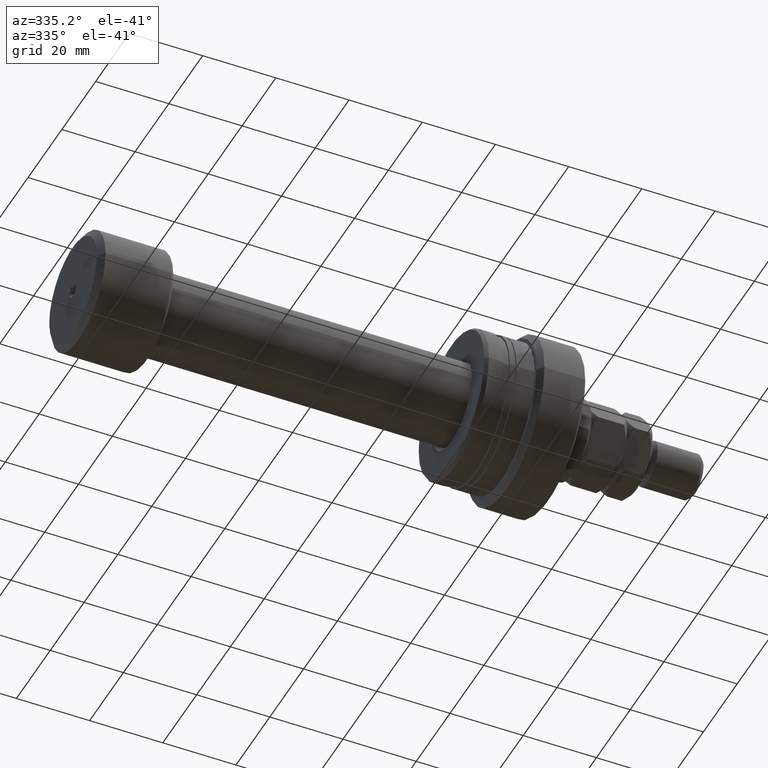
[diagram: clean part render]
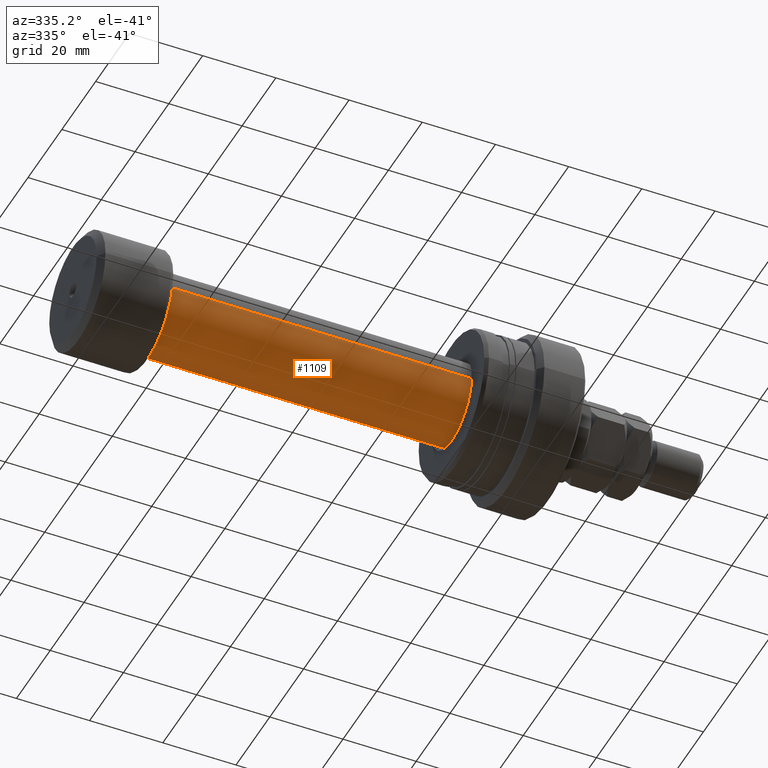
[diagram: same view with one face highlighted and labeled with its STEP entity id]
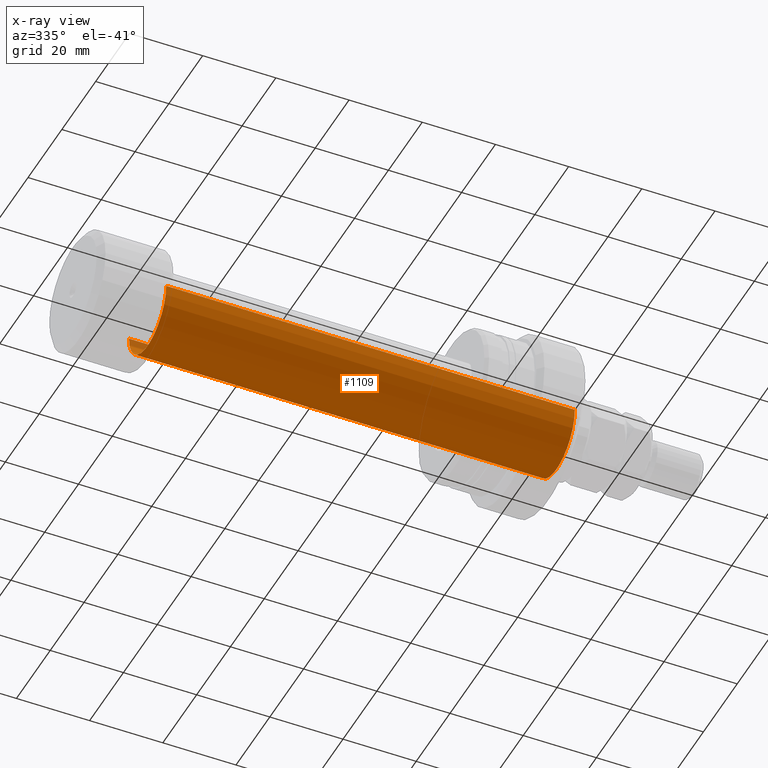
[diagram: x-ray of the same camera — body ghosted, the highlighted face saturated]
A machine part, auxiliary view. The second image highlights one B-rep face of the part: STEP entity #1109.
The next image is the same camera in x-ray: the body ghosted, the highlighted face saturated — about 0% of this face is hidden behind the body in this view.
In plain terms, the highlighted cylindrical surface (partial cylindrical patch) has radius 11 mm, axis along (-1, -0, -0).
Its self-contained STEP definition (entity closure, byte-faithful):
#91 = EDGE_CURVE ( 'NONE', #2416, #3063, #1292, .T. ) ;
#151 = EDGE_CURVE ( 'NONE', #3641, #2416, #3480, .T. ) ;
#375 = DIRECTION ( 'NONE',  ( -1.000000000000000000, -1.069542322069065801E-17, -0.000000000000000000 ) ) ;
#448 = DIRECTION ( 'NONE',  ( -1.000000000000000000, -1.069542322069065801E-17, -0.000000000000000000 ) ) ;
#586 = LINE ( 'NONE', #3426, #1886 ) ;
#730 = CARTESIAN_POINT ( 'NONE',  ( 0.000000000000000000, 0.000000000000000000, 0.000000000000000000 ) ) ;
#883 = EDGE_CURVE ( 'NONE', #3102, #3063, #586, .T. ) ;
#979 = EDGE_LOOP ( 'NONE', ( #2752, #1625, #1764, #2362 ) ) ;
#1109 = ADVANCED_FACE ( 'NONE', ( #3514 ), #3170, .T. ) ;
#1292 = CIRCLE ( 'NONE', #2848, 11.00000000000000000 ) ;
#1305 = DIRECTION ( 'NONE',  ( 0.000000000000000000, -1.000000000000000000, 0.000000000000000000 ) ) ;
#1574 = DIRECTION ( 'NONE',  ( -1.000000000000000000, -1.069542322069065801E-17, -0.000000000000000000 ) ) ;
#1625 = ORIENTED_EDGE ( 'NONE', *, *, #3696, .T. ) ;
#1764 = ORIENTED_EDGE ( 'NONE', *, *, #883, .T. ) ;
#1827 = DIRECTION ( 'NONE',  ( 0.000000000000000000, -1.000000000000000000, 0.000000000000000000 ) ) ;
#1862 = CARTESIAN_POINT ( 'NONE',  ( 20.39999999999999503, -11.00000000000000000, 0.000000000000000000 ) ) ;
#1886 = VECTOR ( 'NONE', #2417, 1000.000000000000000 ) ;
#2111 = CARTESIAN_POINT ( 'NONE',  ( 20.39999999999999503, 2.181866337020893623E-16, 0.000000000000000000 ) ) ;
#2130 = DIRECTION ( 'NONE',  ( -1.000000000000000000, -1.069542322069065801E-17, -0.000000000000000000 ) ) ;
#2343 = AXIS2_PLACEMENT_3D ( 'NONE', #730, #375, #2864 ) ;
#2362 = ORIENTED_EDGE ( 'NONE', *, *, #91, .F. ) ;
#2416 = VERTEX_POINT ( 'NONE', #2823 ) ;
#2417 = DIRECTION ( 'NONE',  ( -1.000000000000000000, -1.069542322069065801E-17, -0.000000000000000000 ) ) ;
#2499 = CARTESIAN_POINT ( 'NONE',  ( 132.0667575123237611, 1.412509864978630128E-15, 0.000000000000000000 ) ) ;
#2752 = ORIENTED_EDGE ( 'NONE', *, *, #151, .F. ) ;
#2786 = CARTESIAN_POINT ( 'NONE',  ( 132.0667575123237611, -11.00000000000019185, 0.000000000000000000 ) ) ;
#2823 = CARTESIAN_POINT ( 'NONE',  ( 20.39999999999999503, 11.00000000000000000, 1.347111479062094321E-15 ) ) ;
#2848 = AXIS2_PLACEMENT_3D ( 'NONE', #2111, #2130, #1827 ) ;
#2864 = DIRECTION ( 'NONE',  ( 1.069542322069065801E-17, -1.000000000000000000, 0.000000000000000000 ) ) ;
#3063 = VERTEX_POINT ( 'NONE', #1862 ) ;
#3102 = VERTEX_POINT ( 'NONE', #2786 ) ;
#3105 = AXIS2_PLACEMENT_3D ( 'NONE', #2499, #1574, #1305 ) ;
#3170 = CYLINDRICAL_SURFACE ( 'NONE', #2343, 11.00000000000009592 ) ;
#3241 = VECTOR ( 'NONE', #448, 1000.000000000000000 ) ;
#3358 = CIRCLE ( 'NONE', #3105, 11.00000000000019362 ) ;
#3426 = CARTESIAN_POINT ( 'NONE',  ( 1.176496554275982688E-16, -11.00000000000009592, 0.000000000000000000 ) ) ;
#3480 = LINE ( 'NONE', #3564, #3241 ) ;
#3514 = FACE_OUTER_BOUND ( 'NONE', #979, .T. ) ;
#3564 = CARTESIAN_POINT ( 'NONE',  ( -1.176496554275982688E-16, 11.00000000000009592, 1.347111479062100435E-15 ) ) ;
#3618 = CARTESIAN_POINT ( 'NONE',  ( 132.0667575123237611, 11.00000000000019362, 1.347111479062112268E-15 ) ) ;
#3641 = VERTEX_POINT ( 'NONE', #3618 ) ;
#3696 = EDGE_CURVE ( 'NONE', #3641, #3102, #3358, .T. ) ;